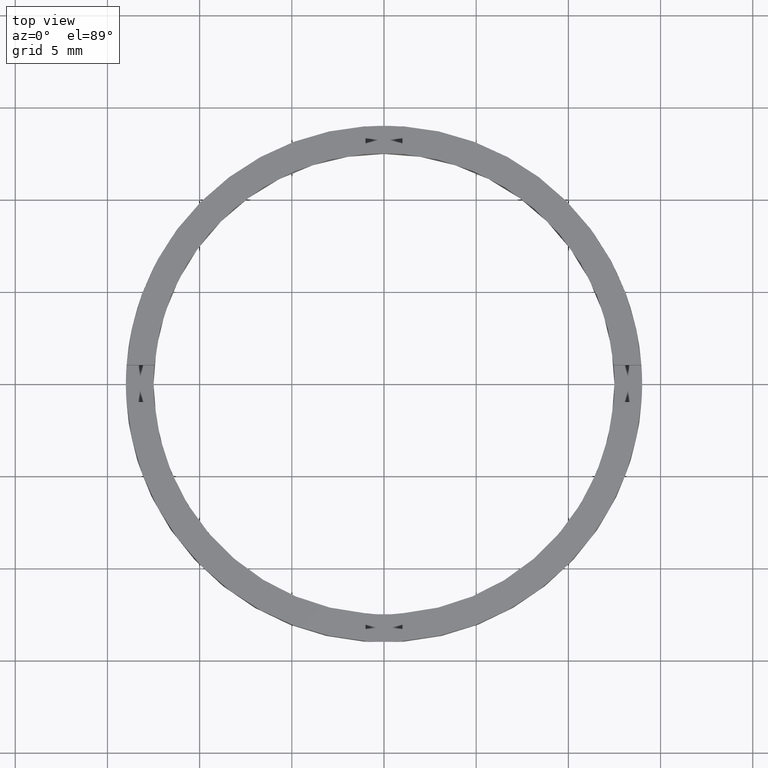
[diagram: clean part render]
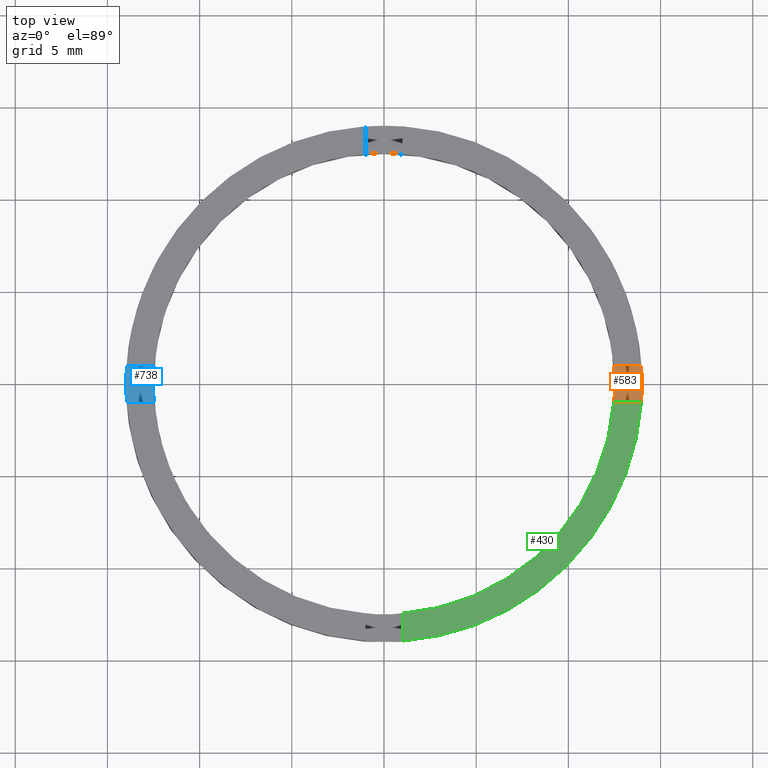
[diagram: same view with three faces highlighted in distinct colors, each labeled with its STEP entity id]
A machine part, top view with three faces highlighted in distinct colors.
Their STEP definitions:

[orange] entity #583 — the highlighted planar face has unit normal (0, 0, 1).
#24 = DIRECTION ( 'NONE',  ( 0.000000000000000000, 0.000000000000000000, 1.000000000000000000 ) ) ;
#28 = EDGE_CURVE ( 'NONE', #187, #665, #530, .T. ) ;
#49 = AXIS2_PLACEMENT_3D ( 'NONE', #422, #543, #646 ) ;
#51 = DIRECTION ( 'NONE',  ( 1.000000000000000000, 0.000000000000000000, 0.000000000000000000 ) ) ;
#85 = LINE ( 'NONE', #143, #333 ) ;
#96 = CARTESIAN_POINT ( 'NONE',  ( 3.999999999999994671, -1.000000000000160094, 1.500000000000000000 ) ) ;
#126 = EDGE_CURVE ( 'NONE', #752, #413, #270, .T. ) ;
#143 = CARTESIAN_POINT ( 'NONE',  ( 3.999999999999994671, 0.9999999999998400169, 1.500000000000000000 ) ) ;
#153 = EDGE_LOOP ( 'NONE', ( #716, #211, #621, #432, #181, #640 ) ) ;
#166 = DIRECTION ( 'NONE',  ( 0.000000000000000000, 0.000000000000000000, 1.000000000000000000 ) ) ;
#181 = ORIENTED_EDGE ( 'NONE', *, *, #654, .F. ) ;
#187 = VERTEX_POINT ( 'NONE', #649 ) ;
#211 = ORIENTED_EDGE ( 'NONE', *, *, #408, .T. ) ;
#237 = CIRCLE ( 'NONE', #281, 14.00000000000000000 ) ;
#270 = CIRCLE ( 'NONE', #49, 14.00000000000000000 ) ;
#281 = AXIS2_PLACEMENT_3D ( 'NONE', #707, #166, #535 ) ;
#318 = DIRECTION ( 'NONE',  ( 1.000000000000000000, 4.336808689942017736E-17, 0.000000000000000000 ) ) ;
#332 = FACE_OUTER_BOUND ( 'NONE', #153, .T. ) ;
#333 = VECTOR ( 'NONE', #560, 1000.000000000000000 ) ;
#334 = CARTESIAN_POINT ( 'NONE',  ( 0.000000000000000000, 0.000000000000000000, 1.500000000000000000 ) ) ;
#375 = CARTESIAN_POINT ( 'NONE',  ( 12.45993579437712739, 0.9999999999998402389, 1.500000000000000000 ) ) ;
#389 = PLANE ( 'NONE',  #402 ) ;
#402 = AXIS2_PLACEMENT_3D ( 'NONE', #618, #703, #632 ) ;
#408 = EDGE_CURVE ( 'NONE', #413, #468, #237, .T. ) ;
#413 = VERTEX_POINT ( 'NONE', #577 ) ;
#422 = CARTESIAN_POINT ( 'NONE',  ( 0.000000000000000000, 0.000000000000000000, 1.500000000000000000 ) ) ;
#432 = ORIENTED_EDGE ( 'NONE', *, *, #28, .F. ) ;
#461 = DIRECTION ( 'NONE',  ( 1.000000000000000000, 0.000000000000000000, 0.000000000000000000 ) ) ;
#468 = VERTEX_POINT ( 'NONE', #597 ) ;
#502 = CARTESIAN_POINT ( 'NONE',  ( 13.96424004376893002, -1.000000000000159650, 1.500000000000000000 ) ) ;
#521 = AXIS2_PLACEMENT_3D ( 'NONE', #745, #24, #461 ) ;
#530 = CIRCLE ( 'NONE', #633, 12.50000000000000000 ) ;
#535 = DIRECTION ( 'NONE',  ( 1.000000000000000000, 0.000000000000000000, 0.000000000000000000 ) ) ;
#543 = DIRECTION ( 'NONE',  ( 0.000000000000000000, 0.000000000000000000, 1.000000000000000000 ) ) ;
#560 = DIRECTION ( 'NONE',  ( -1.000000000000000000, -4.336808689942017736E-17, -0.000000000000000000 ) ) ;
#566 = CARTESIAN_POINT ( 'NONE',  ( 12.45993579437710075, -1.000000000000159872, 1.500000000000000000 ) ) ;
#573 = EDGE_CURVE ( 'NONE', #673, #752, #593, .T. ) ;
#577 = CARTESIAN_POINT ( 'NONE',  ( 14.00000000000000000, 1.714505518806294638E-15, 1.500000000000000000 ) ) ;
#583 = ADVANCED_FACE ( 'NONE', ( #332 ), #389, .T. ) ;
#586 = VECTOR ( 'NONE', #318, 1000.000000000000000 ) ;
#593 = LINE ( 'NONE', #96, #586 ) ;
#597 = CARTESIAN_POINT ( 'NONE',  ( 13.96424004376895311, 0.9999999999998404610, 1.500000000000000000 ) ) ;
#603 = CIRCLE ( 'NONE', #521, 12.50000000000000000 ) ;
#618 = CARTESIAN_POINT ( 'NONE',  ( 0.000000000000000000, 0.000000000000000000, 1.500000000000000000 ) ) ;
#621 = ORIENTED_EDGE ( 'NONE', *, *, #679, .T. ) ;
#632 = DIRECTION ( 'NONE',  ( 1.000000000000000000, 0.000000000000000000, -0.000000000000000000 ) ) ;
#633 = AXIS2_PLACEMENT_3D ( 'NONE', #334, #727, #51 ) ;
#640 = ORIENTED_EDGE ( 'NONE', *, *, #573, .T. ) ;
#646 = DIRECTION ( 'NONE',  ( 1.000000000000000000, 0.000000000000000000, 0.000000000000000000 ) ) ;
#649 = CARTESIAN_POINT ( 'NONE',  ( 12.50000000000000000, 1.530808498934191521E-15, 1.500000000000000000 ) ) ;
#654 = EDGE_CURVE ( 'NONE', #673, #187, #603, .T. ) ;
#665 = VERTEX_POINT ( 'NONE', #375 ) ;
#673 = VERTEX_POINT ( 'NONE', #566 ) ;
#679 = EDGE_CURVE ( 'NONE', #468, #665, #85, .T. ) ;
#703 = DIRECTION ( 'NONE',  ( 0.000000000000000000, 0.000000000000000000, 1.000000000000000000 ) ) ;
#707 = CARTESIAN_POINT ( 'NONE',  ( 0.000000000000000000, 0.000000000000000000, 1.500000000000000000 ) ) ;
#716 = ORIENTED_EDGE ( 'NONE', *, *, #126, .T. ) ;
#727 = DIRECTION ( 'NONE',  ( 0.000000000000000000, 0.000000000000000000, 1.000000000000000000 ) ) ;
#745 = CARTESIAN_POINT ( 'NONE',  ( 0.000000000000000000, 0.000000000000000000, 1.500000000000000000 ) ) ;
#752 = VERTEX_POINT ( 'NONE', #502 ) ;

[blue] entity #738 — the highlighted planar face has unit normal (0, 0, 1).
#1 = CIRCLE ( 'NONE', #242, 12.50000000000000000 ) ;
#35 = DIRECTION ( 'NONE',  ( 1.000000000000000000, 0.000000000000000000, 0.000000000000000000 ) ) ;
#48 = DIRECTION ( 'NONE',  ( 0.000000000000000000, 0.000000000000000000, 1.000000000000000000 ) ) ;
#50 = AXIS2_PLACEMENT_3D ( 'NONE', #209, #264, #323 ) ;
#67 = AXIS2_PLACEMENT_3D ( 'NONE', #117, #397, #184 ) ;
#72 = EDGE_CURVE ( 'NONE', #648, #231, #525, .T. ) ;
#117 = CARTESIAN_POINT ( 'NONE',  ( 0.000000000000000000, 0.000000000000000000, 1.500000000000000000 ) ) ;
#118 = LINE ( 'NONE', #512, #365 ) ;
#164 = ORIENTED_EDGE ( 'NONE', *, *, #72, .T. ) ;
#184 = DIRECTION ( 'NONE',  ( 1.000000000000000000, 0.000000000000000000, 0.000000000000000000 ) ) ;
#197 = AXIS2_PLACEMENT_3D ( 'NONE', #315, #279, #594 ) ;
#204 = DIRECTION ( 'NONE',  ( 1.000000000000000000, 1.734723475976807094E-16, -0.000000000000000000 ) ) ;
#209 = CARTESIAN_POINT ( 'NONE',  ( 0.000000000000000000, 0.000000000000000000, 1.500000000000000000 ) ) ;
#220 = ORIENTED_EDGE ( 'NONE', *, *, #346, .T. ) ;
#231 = VERTEX_POINT ( 'NONE', #678 ) ;
#242 = AXIS2_PLACEMENT_3D ( 'NONE', #595, #658, #751 ) ;
#255 = LINE ( 'NONE', #273, #759 ) ;
#264 = DIRECTION ( 'NONE',  ( 0.000000000000000000, 0.000000000000000000, 1.000000000000000000 ) ) ;
#273 = CARTESIAN_POINT ( 'NONE',  ( -4.000000000000185629, 0.9999999999999790168, 1.500000000000000000 ) ) ;
#279 = DIRECTION ( 'NONE',  ( 0.000000000000000000, 0.000000000000000000, 1.000000000000000000 ) ) ;
#299 = EDGE_CURVE ( 'NONE', #411, #711, #255, .T. ) ;
#309 = EDGE_CURVE ( 'NONE', #652, #480, #1, .T. ) ;
#312 = DIRECTION ( 'NONE',  ( -1.000000000000000000, -1.734723475976807094E-16, 0.000000000000000000 ) ) ;
#315 = CARTESIAN_POINT ( 'NONE',  ( 0.000000000000000000, 0.000000000000000000, 1.500000000000000000 ) ) ;
#323 = DIRECTION ( 'NONE',  ( 1.000000000000000000, 0.000000000000000000, -0.000000000000000000 ) ) ;
#338 = CARTESIAN_POINT ( 'NONE',  ( -12.45993579437711496, 0.9999999999999774625, 1.500000000000000000 ) ) ;
#346 = EDGE_CURVE ( 'NONE', #711, #648, #489, .T. ) ;
#357 = FACE_OUTER_BOUND ( 'NONE', #483, .T. ) ;
#365 = VECTOR ( 'NONE', #204, 1000.000000000000000 ) ;
#397 = DIRECTION ( 'NONE',  ( 0.000000000000000000, 0.000000000000000000, 1.000000000000000000 ) ) ;
#411 = VERTEX_POINT ( 'NONE', #338 ) ;
#426 = ORIENTED_EDGE ( 'NONE', *, *, #299, .T. ) ;
#449 = CARTESIAN_POINT ( 'NONE',  ( -12.45993579437711141, -1.000000000000022649, 1.500000000000000000 ) ) ;
#476 = EDGE_CURVE ( 'NONE', #231, #480, #118, .T. ) ;
#478 = ORIENTED_EDGE ( 'NONE', *, *, #762, .F. ) ;
#480 = VERTEX_POINT ( 'NONE', #449 ) ;
#483 = EDGE_LOOP ( 'NONE', ( #220, #164, #485, #671, #478, #426 ) ) ;
#485 = ORIENTED_EDGE ( 'NONE', *, *, #476, .T. ) ;
#489 = CIRCLE ( 'NONE', #605, 14.00000000000000000 ) ;
#497 = PLANE ( 'NONE',  #50 ) ;
#512 = CARTESIAN_POINT ( 'NONE',  ( -4.000000000000185629, -1.000000000000021094, 1.500000000000000000 ) ) ;
#525 = CIRCLE ( 'NONE', #67, 14.00000000000000000 ) ;
#552 = CARTESIAN_POINT ( 'NONE',  ( -13.96424004376894246, 0.9999999999999772404, 1.500000000000000000 ) ) ;
#594 = DIRECTION ( 'NONE',  ( 1.000000000000000000, 0.000000000000000000, 0.000000000000000000 ) ) ;
#595 = CARTESIAN_POINT ( 'NONE',  ( 0.000000000000000000, 0.000000000000000000, 1.500000000000000000 ) ) ;
#605 = AXIS2_PLACEMENT_3D ( 'NONE', #760, #48, #35 ) ;
#616 = CIRCLE ( 'NONE', #197, 12.50000000000000000 ) ;
#648 = VERTEX_POINT ( 'NONE', #657 ) ;
#652 = VERTEX_POINT ( 'NONE', #750 ) ;
#657 = CARTESIAN_POINT ( 'NONE',  ( -14.00000000000000000, 0.000000000000000000, 1.500000000000000000 ) ) ;
#658 = DIRECTION ( 'NONE',  ( 0.000000000000000000, 0.000000000000000000, 1.000000000000000000 ) ) ;
#671 = ORIENTED_EDGE ( 'NONE', *, *, #309, .F. ) ;
#678 = CARTESIAN_POINT ( 'NONE',  ( -13.96424004376894068, -1.000000000000022871, 1.500000000000000000 ) ) ;
#711 = VERTEX_POINT ( 'NONE', #552 ) ;
#738 = ADVANCED_FACE ( 'NONE', ( #357 ), #497, .T. ) ;
#750 = CARTESIAN_POINT ( 'NONE',  ( -12.50000000000000000, 0.000000000000000000, 1.500000000000000000 ) ) ;
#751 = DIRECTION ( 'NONE',  ( 1.000000000000000000, 0.000000000000000000, 0.000000000000000000 ) ) ;
#759 = VECTOR ( 'NONE', #312, 1000.000000000000000 ) ;
#760 = CARTESIAN_POINT ( 'NONE',  ( 0.000000000000000000, 0.000000000000000000, 1.500000000000000000 ) ) ;
#762 = EDGE_CURVE ( 'NONE', #411, #652, #616, .T. ) ;

[green] entity #430 — the highlighted planar face has unit normal (0, 0, 1).
#7 = VECTOR ( 'NONE', #341, 1000.000000000000000 ) ;
#20 = CARTESIAN_POINT ( 'NONE',  ( 12.45993579437710075, -1.000000000000159872, 2.500000000000000000 ) ) ;
#22 = DIRECTION ( 'NONE',  ( 1.000000000000000000, 4.336808689942017736E-17, 0.000000000000000000 ) ) ;
#45 = EDGE_CURVE ( 'NONE', #656, #655, #524, .T. ) ;
#58 = PLANE ( 'NONE',  #410 ) ;
#87 = CARTESIAN_POINT ( 'NONE',  ( 0.9999999999998366862, -13.96424004376895311, 2.500000000000000000 ) ) ;
#112 = CARTESIAN_POINT ( 'NONE',  ( 0.000000000000000000, 0.000000000000000000, 2.500000000000000000 ) ) ;
#113 = LINE ( 'NONE', #550, #359 ) ;
#130 = CARTESIAN_POINT ( 'NONE',  ( 0.000000000000000000, 0.000000000000000000, 2.500000000000000000 ) ) ;
#178 = DIRECTION ( 'NONE',  ( 0.000000000000000000, 0.000000000000000000, 1.000000000000000000 ) ) ;
#212 = DIRECTION ( 'NONE',  ( 0.000000000000000000, 0.000000000000000000, 1.000000000000000000 ) ) ;
#216 = ORIENTED_EDGE ( 'NONE', *, *, #280, .T. ) ;
#275 = EDGE_CURVE ( 'NONE', #655, #689, #496, .T. ) ;
#280 = EDGE_CURVE ( 'NONE', #656, #723, #765, .T. ) ;
#305 = CARTESIAN_POINT ( 'NONE',  ( 0.9999999999998354649, -4.000000000000180300, 2.500000000000000000 ) ) ;
#341 = DIRECTION ( 'NONE',  ( -1.301042606982605321E-16, 1.000000000000000000, -0.000000000000000000 ) ) ;
#347 = DIRECTION ( 'NONE',  ( 1.000000000000000000, 0.000000000000000000, 0.000000000000000000 ) ) ;
#359 = VECTOR ( 'NONE', #22, 1000.000000000000000 ) ;
#393 = AXIS2_PLACEMENT_3D ( 'NONE', #130, #503, #347 ) ;
#404 = EDGE_LOOP ( 'NONE', ( #423, #417, #674, #216 ) ) ;
#410 = AXIS2_PLACEMENT_3D ( 'NONE', #112, #178, #482 ) ;
#417 = ORIENTED_EDGE ( 'NONE', *, *, #275, .F. ) ;
#423 = ORIENTED_EDGE ( 'NONE', *, *, #540, .F. ) ;
#430 = ADVANCED_FACE ( 'NONE', ( #771 ), #58, .T. ) ;
#482 = DIRECTION ( 'NONE',  ( 1.000000000000000000, 0.000000000000000000, -0.000000000000000000 ) ) ;
#492 = CARTESIAN_POINT ( 'NONE',  ( 0.000000000000000000, 0.000000000000000000, 2.500000000000000000 ) ) ;
#496 = CIRCLE ( 'NONE', #393, 12.50000000000000000 ) ;
#503 = DIRECTION ( 'NONE',  ( 0.000000000000000000, 0.000000000000000000, 1.000000000000000000 ) ) ;
#524 = LINE ( 'NONE', #305, #7 ) ;
#540 = EDGE_CURVE ( 'NONE', #689, #723, #113, .T. ) ;
#546 = DIRECTION ( 'NONE',  ( 1.000000000000000000, 0.000000000000000000, 0.000000000000000000 ) ) ;
#550 = CARTESIAN_POINT ( 'NONE',  ( 3.999999999999994671, -1.000000000000160094, 2.500000000000000000 ) ) ;
#576 = AXIS2_PLACEMENT_3D ( 'NONE', #492, #212, #546 ) ;
#588 = CARTESIAN_POINT ( 'NONE',  ( 0.9999999999998365752, -12.45993579437712739, 2.500000000000000000 ) ) ;
#613 = CARTESIAN_POINT ( 'NONE',  ( 13.96424004376893002, -1.000000000000159650, 2.500000000000000000 ) ) ;
#655 = VERTEX_POINT ( 'NONE', #588 ) ;
#656 = VERTEX_POINT ( 'NONE', #87 ) ;
#674 = ORIENTED_EDGE ( 'NONE', *, *, #45, .F. ) ;
#689 = VERTEX_POINT ( 'NONE', #20 ) ;
#723 = VERTEX_POINT ( 'NONE', #613 ) ;
#765 = CIRCLE ( 'NONE', #576, 14.00000000000000000 ) ;
#771 = FACE_OUTER_BOUND ( 'NONE', #404, .T. ) ;